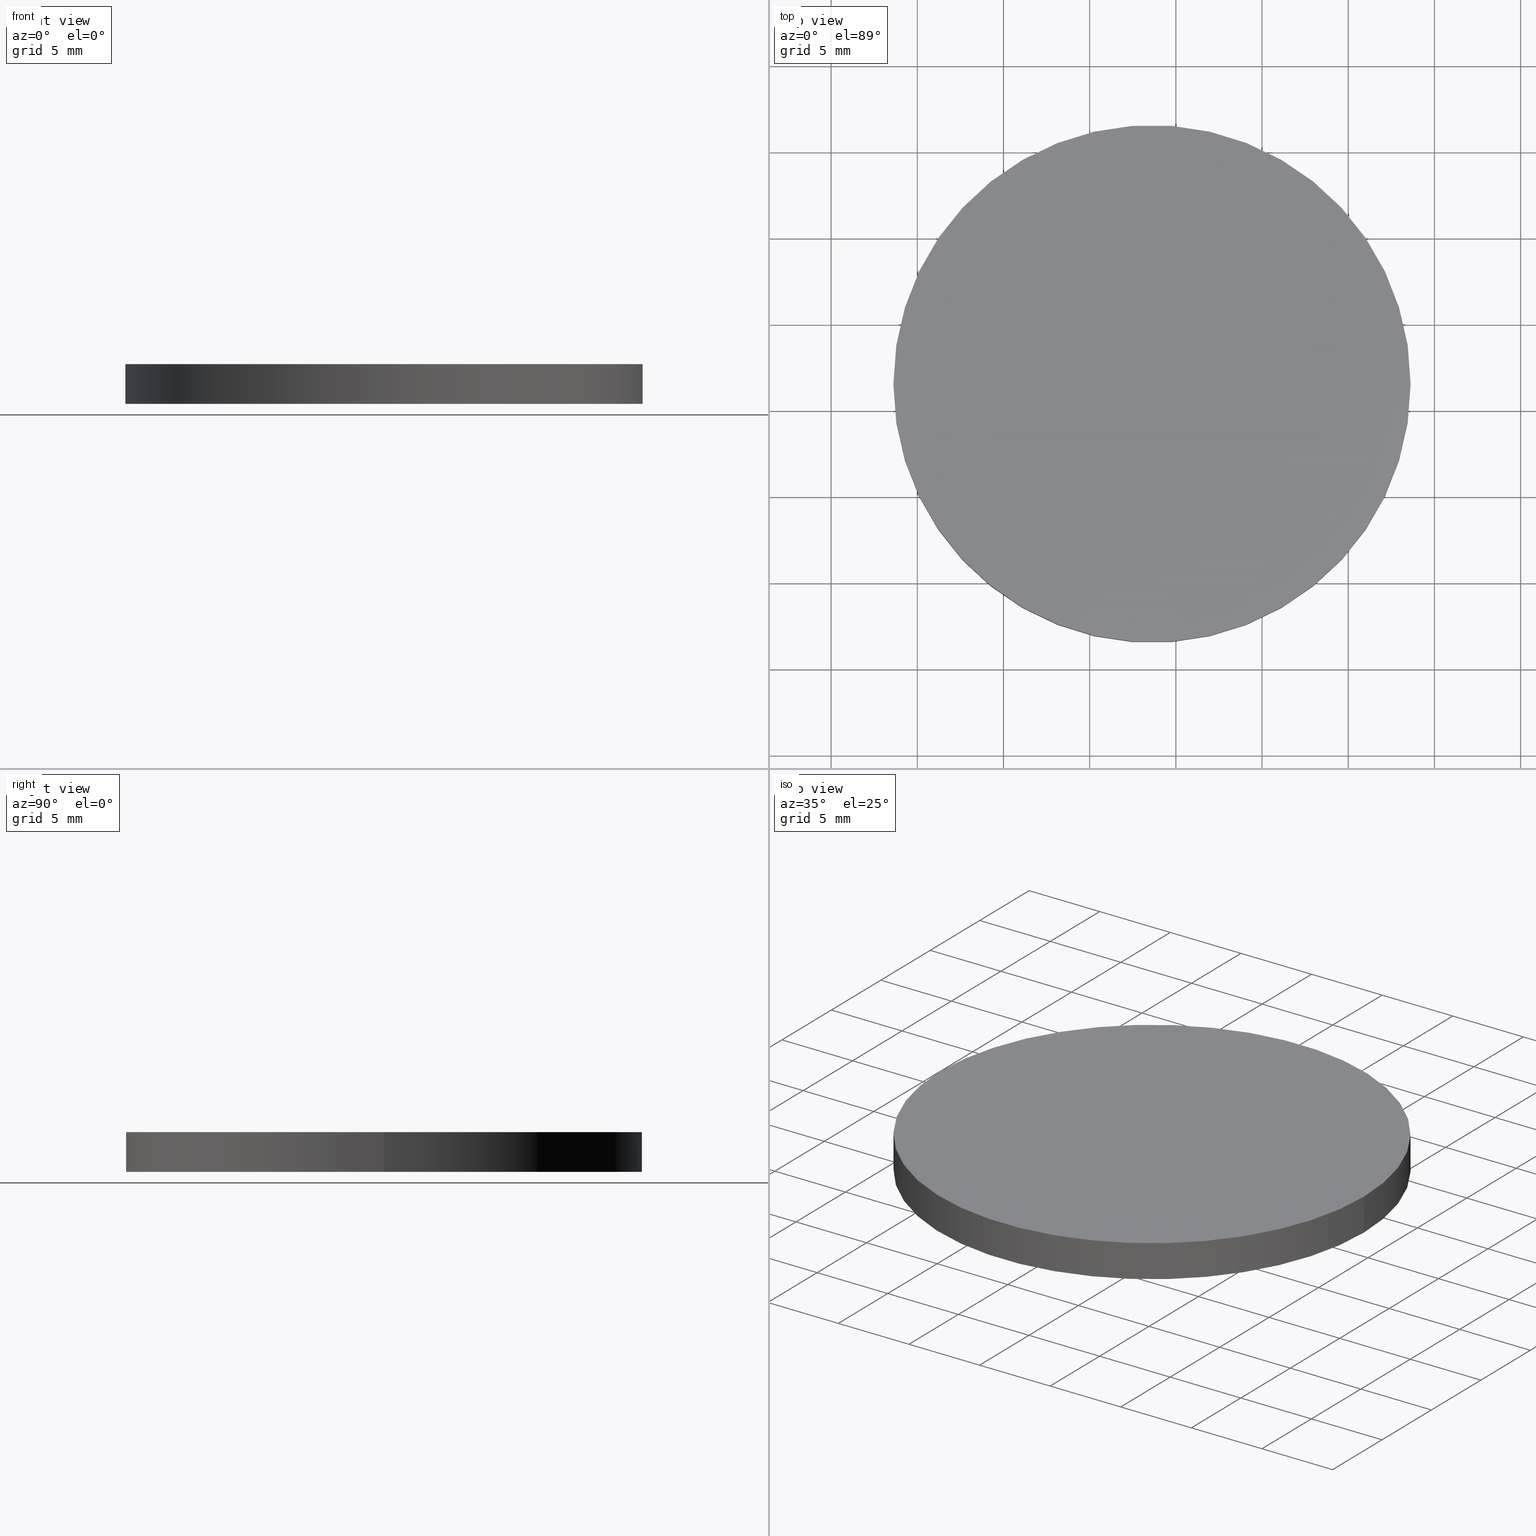
[diagram: canonical four-view strip — front | top / right | iso, engineering-drawing reading convention]
A machine part, canonical four-view strip (front | top / right | iso — engineering-drawing reading convention). The complete STEP part file that produces these views, byte-faithful:
ISO-10303-21;
HEADER;
FILE_DESCRIPTION (( 'STEP AP214' ),
    '1' );
FILE_NAME ('302520.STEP',
    '2019-08-13T06:31:06',
    ( '' ),
    ( '' ),
    'SwSTEP 2.0',
    'SolidWorks 2016',
    '' );
FILE_SCHEMA (( 'AUTOMOTIVE_DESIGN' ));
ENDSEC;

DATA;
#1 = PRESENTATION_LAYER_ASSIGNMENT (  '', '', ( #62 ) ) ;
#2 =( GEOMETRIC_REPRESENTATION_CONTEXT ( 3 ) GLOBAL_UNCERTAINTY_ASSIGNED_CONTEXT ( ( #34 ) ) GLOBAL_UNIT_ASSIGNED_CONTEXT ( ( #65, #28, #72 ) ) REPRESENTATION_CONTEXT ( 'NONE', 'WORKASPACE' ) );
#3 = ADVANCED_BREP_SHAPE_REPRESENTATION ( '302520', ( #96, #55 ), #2 ) ;
#4 = LINE ( 'NONE', #35, #129 ) ;
#5 =( NAMED_UNIT ( * ) PLANE_ANGLE_UNIT ( ) SI_UNIT ( $, .RADIAN. ) );
#6 = EDGE_LOOP ( 'NONE', ( #78, #122, #24, #83 ) ) ;
#7 =( NAMED_UNIT ( * ) SI_UNIT ( $, .STERADIAN. ) SOLID_ANGLE_UNIT ( ) );
#8 = PRESENTATION_STYLE_ASSIGNMENT (( #92 ) ) ;
#9 = PRODUCT_DEFINITION_FORMATION_WITH_SPECIFIED_SOURCE ( '�κ�', '', #15, .NOT_KNOWN. ) ;
#10 = CARTESIAN_POINT ( 'NONE',  ( 108.6149839422837000, 61.56324183452659300, 2.299999999999999800 ) ) ;
#11 = DIRECTION ( 'NONE',  ( -0.0000000000000000000, -0.0000000000000000000, -1.000000000000000000 ) ) ;
#12 =( GEOMETRIC_REPRESENTATION_CONTEXT ( 3 ) GLOBAL_UNCERTAINTY_ASSIGNED_CONTEXT ( ( #70 ) ) GLOBAL_UNIT_ASSIGNED_CONTEXT ( ( #64, #5, #7 ) ) REPRESENTATION_CONTEXT ( 'NONE', 'WORKASPACE' ) );
#13 = DIRECTION ( 'NONE',  ( 0.0000000000000000000, 0.0000000000000000000, 1.000000000000000000 ) ) ;
#14 = ORIENTED_EDGE ( 'NONE', *, *, #93, .F. ) ;
#15 = PRODUCT ( '302520', '302520', '', ( #33 ) ) ;
#16 = PRODUCT_RELATED_PRODUCT_CATEGORY ( 'part', '', ( #15 ) ) ;
#17 = SURFACE_STYLE_FILL_AREA ( #124 ) ;
#18 = EDGE_CURVE ( 'NONE', #87, #21, #4, .T. ) ;
#19 = CIRCLE ( 'NONE', #90, 15.00000000000000000 ) ;
#20 = CARTESIAN_POINT ( 'NONE',  ( 93.61498394228370000, 61.56324183452659300, 2.299999999999999800 ) ) ;
#21 = VERTEX_POINT ( 'NONE', #133 ) ;
#22 = CARTESIAN_POINT ( 'NONE',  ( 108.6149839422837000, 61.56324183452659300, 2.299999999999999800 ) ) ;
#23 = EDGE_CURVE ( 'NONE', #85, #87, #106, .T. ) ;
#24 = ORIENTED_EDGE ( 'NONE', *, *, #93, .T. ) ;
#25 = ORIENTED_EDGE ( 'NONE', *, *, #23, .T. ) ;
#26 = DIRECTION ( 'NONE',  ( 0.0000000000000000000, 0.0000000000000000000, 1.000000000000000000 ) ) ;
#27 = EDGE_LOOP ( 'NONE', ( #74, #66 ) ) ;
#28 =( NAMED_UNIT ( * ) PLANE_ANGLE_UNIT ( ) SI_UNIT ( $, .RADIAN. ) );
#29 =( NAMED_UNIT ( * ) SI_UNIT ( $, .STERADIAN. ) SOLID_ANGLE_UNIT ( ) );
#30 = CARTESIAN_POINT ( 'NONE',  ( 108.6149839422837000, 61.56324183452659300, 0.0000000000000000000 ) ) ;
#31 = VECTOR ( 'NONE', #63, 1000.000000000000000 ) ;
#32 = CARTESIAN_POINT ( 'NONE',  ( 93.61498394228370000, 61.56324183452659300, 2.299999999999999800 ) ) ;
#33 = PRODUCT_CONTEXT ( 'NONE', #113, 'mechanical' ) ;
#34 = UNCERTAINTY_MEASURE_WITH_UNIT (LENGTH_MEASURE( 1.000000000000000100E-005 ), #65, 'distance_accuracy_value', 'NONE');
#35 = CARTESIAN_POINT ( 'NONE',  ( 123.6149839422836900, 61.56324183452659300, 2.299999999999999800 ) ) ;
#36 = COLOUR_RGB ( '',1.000000000000000000, 1.000000000000000000, 1.000000000000000000 ) ;
#37 = DIRECTION ( 'NONE',  ( 1.000000000000000000, 0.0000000000000000000, -0.0000000000000000000 ) ) ;
#38 = CIRCLE ( 'NONE', #75, 15.00000000000000000 ) ;
#39 = CARTESIAN_POINT ( 'NONE',  ( 123.6149839422836900, 61.56324183452659300, 2.299999999999999800 ) ) ;
#40 = DIRECTION ( 'NONE',  ( 1.000000000000000000, 0.0000000000000000000, -0.0000000000000000000 ) ) ;
#41 = SURFACE_SIDE_STYLE ('',( #17 ) ) ;
#42 =( NAMED_UNIT ( * ) PLANE_ANGLE_UNIT ( ) SI_UNIT ( $, .RADIAN. ) );
#43 = CYLINDRICAL_SURFACE ( 'NONE', #107, 15.00000000000000000 ) ;
#44 = PRODUCT_DEFINITION_SHAPE ( 'NONE', 'NONE',  #121 ) ;
#45 = PRESENTATION_STYLE_ASSIGNMENT (( #114 ) ) ;
#46 = CIRCLE ( 'NONE', #56, 15.00000000000000000 ) ;
#47 = APPLICATION_PROTOCOL_DEFINITION ( 'draft international standard', 'automotive_design', 1998, #88 ) ;
#48 = AXIS2_PLACEMENT_3D ( 'NONE', #102, #134, #69 ) ;
#49 = ADVANCED_FACE ( 'NONE', ( #116 ), #50, .T. ) ;
#50 = PLANE ( 'NONE',  #73 ) ;
#51 = DIRECTION ( 'NONE',  ( 0.0000000000000000000, 0.0000000000000000000, 1.000000000000000000 ) ) ;
#52 = ORIENTED_EDGE ( 'NONE', *, *, #97, .F. ) ;
#53 = APPLICATION_PROTOCOL_DEFINITION ( 'draft international standard', 'automotive_design', 1998, #113 ) ;
#54 = CARTESIAN_POINT ( 'NONE',  ( 93.61498394228370000, 61.56324183452659300, 0.0000000000000000000 ) ) ;
#55 = AXIS2_PLACEMENT_3D ( 'NONE', #82, #131, #111 ) ;
#56 = AXIS2_PLACEMENT_3D ( 'NONE', #99, #26, #123 ) ;
#57 = FACE_OUTER_BOUND ( 'NONE', #6, .T. ) ;
#58 = EDGE_CURVE ( 'NONE', #101, #21, #46, .T. ) ;
#59 = DIRECTION ( 'NONE',  ( 0.0000000000000000000, 0.0000000000000000000, 1.000000000000000000 ) ) ;
#60 = ORIENTED_EDGE ( 'NONE', *, *, #97, .T. ) ;
#61 = DIRECTION ( 'NONE',  ( -0.0000000000000000000, -0.0000000000000000000, -1.000000000000000000 ) ) ;
#62 = STYLED_ITEM ( 'NONE', ( #45 ), #3 ) ;
#63 = DIRECTION ( 'NONE',  ( -0.0000000000000000000, -0.0000000000000000000, -1.000000000000000000 ) ) ;
#64 =( LENGTH_UNIT ( ) NAMED_UNIT ( * ) SI_UNIT ( .MILLI., .METRE. ) );
#65 =( LENGTH_UNIT ( ) NAMED_UNIT ( * ) SI_UNIT ( .MILLI., .METRE. ) );
#66 = ORIENTED_EDGE ( 'NONE', *, *, #77, .F. ) ;
#67 = ADVANCED_FACE ( 'NONE', ( #130 ), #89, .F. ) ;
#68 = CARTESIAN_POINT ( 'NONE',  ( 108.6149839422837000, 61.56324183452659300, 0.0000000000000000000 ) ) ;
#69 = DIRECTION ( 'NONE',  ( 1.000000000000000000, 0.0000000000000000000, 0.0000000000000000000 ) ) ;
#70 = UNCERTAINTY_MEASURE_WITH_UNIT (LENGTH_MEASURE( 1.000000000000000100E-005 ), #64, 'distance_accuracy_value', 'NONE');
#71 = CYLINDRICAL_SURFACE ( 'NONE', #110, 15.00000000000000000 ) ;
#72 =( NAMED_UNIT ( * ) SI_UNIT ( $, .STERADIAN. ) SOLID_ANGLE_UNIT ( ) );
#73 = AXIS2_PLACEMENT_3D ( 'NONE', #22, #59, #37 ) ;
#74 = ORIENTED_EDGE ( 'NONE', *, *, #58, .F. ) ;
#75 = AXIS2_PLACEMENT_3D ( 'NONE', #30, #13, #139 ) ;
#76 = ADVANCED_FACE ( 'NONE', ( #57 ), #43, .T. ) ;
#77 = EDGE_CURVE ( 'NONE', #21, #101, #38, .T. ) ;
#78 = ORIENTED_EDGE ( 'NONE', *, *, #18, .F. ) ;
#79 = DIRECTION ( 'NONE',  ( -1.000000000000000000, 0.0000000000000000000, 0.0000000000000000000 ) ) ;
#80 = DIRECTION ( 'NONE',  ( 1.000000000000000000, 0.0000000000000000000, 0.0000000000000000000 ) ) ;
#81 = SURFACE_SIDE_STYLE ('',( #108 ) ) ;
#82 = CARTESIAN_POINT ( 'NONE',  ( 0.0000000000000000000, 0.0000000000000000000, 0.0000000000000000000 ) ) ;
#83 = ORIENTED_EDGE ( 'NONE', *, *, #58, .T. ) ;
#84 = PRESENTATION_LAYER_ASSIGNMENT (  '', '', ( #120 ) ) ;
#85 = VERTEX_POINT ( 'NONE', #20 ) ;
#86 = AXIS2_PLACEMENT_3D ( 'NONE', #68, #51, #40 ) ;
#87 = VERTEX_POINT ( 'NONE', #39 ) ;
#88 = APPLICATION_CONTEXT ( 'automotive_design' ) ;
#89 = PLANE ( 'NONE',  #86 ) ;
#90 = AXIS2_PLACEMENT_3D ( 'NONE', #128, #94, #80 ) ;
#91 = FILL_AREA_STYLE_COLOUR ( '', #36 ) ;
#92 = SURFACE_STYLE_USAGE ( .BOTH. , #41 ) ;
#93 = EDGE_CURVE ( 'NONE', #85, #101, #140, .T. ) ;
#94 = DIRECTION ( 'NONE',  ( 0.0000000000000000000, 0.0000000000000000000, 1.000000000000000000 ) ) ;
#95 = CLOSED_SHELL ( 'NONE', ( #119, #76, #49, #67 ) ) ;
#96 = MANIFOLD_SOLID_BREP ( '͹̨-����1', #95 ) ;
#97 = EDGE_CURVE ( 'NONE', #87, #85, #19, .T. ) ;
#98 = PRODUCT_DEFINITION_CONTEXT ( 'detailed design', #88, 'design' ) ;
#99 = CARTESIAN_POINT ( 'NONE',  ( 108.6149839422837000, 61.56324183452659300, 0.0000000000000000000 ) ) ;
#100 = MECHANICAL_DESIGN_GEOMETRIC_PRESENTATION_REPRESENTATION (  '', ( #120 ), #117 ) ;
#101 = VERTEX_POINT ( 'NONE', #54 ) ;
#102 = CARTESIAN_POINT ( 'NONE',  ( 108.6149839422837000, 61.56324183452659300, 2.299999999999999800 ) ) ;
#103 = DIRECTION ( 'NONE',  ( -0.0000000000000000000, -0.0000000000000000000, -1.000000000000000000 ) ) ;
#104 = FILL_AREA_STYLE ('',( #91 ) ) ;
#105 = CARTESIAN_POINT ( 'NONE',  ( 108.6149839422837000, 61.56324183452659300, 2.299999999999999800 ) ) ;
#106 = CIRCLE ( 'NONE', #48, 15.00000000000000000 ) ;
#107 = AXIS2_PLACEMENT_3D ( 'NONE', #10, #11, #79 ) ;
#108 = SURFACE_STYLE_FILL_AREA ( #104 ) ;
#109 = ORIENTED_EDGE ( 'NONE', *, *, #18, .T. ) ;
#110 = AXIS2_PLACEMENT_3D ( 'NONE', #105, #103, #138 ) ;
#111 = DIRECTION ( 'NONE',  ( 1.000000000000000000, 0.0000000000000000000, 0.0000000000000000000 ) ) ;
#112 = EDGE_LOOP ( 'NONE', ( #25, #60 ) ) ;
#113 = APPLICATION_CONTEXT ( 'automotive_design' ) ;
#114 = SURFACE_STYLE_USAGE ( .BOTH. , #81 ) ;
#115 = ORIENTED_EDGE ( 'NONE', *, *, #77, .T. ) ;
#116 = FACE_OUTER_BOUND ( 'NONE', #112, .T. ) ;
#117 =( GEOMETRIC_REPRESENTATION_CONTEXT ( 3 ) GLOBAL_UNCERTAINTY_ASSIGNED_CONTEXT ( ( #137 ) ) GLOBAL_UNIT_ASSIGNED_CONTEXT ( ( #136, #42, #29 ) ) REPRESENTATION_CONTEXT ( 'NONE', 'WORKASPACE' ) );
#118 = EDGE_LOOP ( 'NONE', ( #52, #109, #115, #14 ) ) ;
#119 = ADVANCED_FACE ( 'NONE', ( #126 ), #71, .T. ) ;
#120 = STYLED_ITEM ( 'NONE', ( #8 ), #96 ) ;
#121 = PRODUCT_DEFINITION ( 'δ֪', '', #9, #98 ) ;
#122 = ORIENTED_EDGE ( 'NONE', *, *, #23, .F. ) ;
#123 = DIRECTION ( 'NONE',  ( 1.000000000000000000, 0.0000000000000000000, 0.0000000000000000000 ) ) ;
#124 = FILL_AREA_STYLE ('',( #127 ) ) ;
#125 = MECHANICAL_DESIGN_GEOMETRIC_PRESENTATION_REPRESENTATION (  '', ( #62 ), #12 ) ;
#126 = FACE_OUTER_BOUND ( 'NONE', #118, .T. ) ;
#127 = FILL_AREA_STYLE_COLOUR ( '', #135 ) ;
#128 = CARTESIAN_POINT ( 'NONE',  ( 108.6149839422837000, 61.56324183452659300, 2.299999999999999800 ) ) ;
#129 = VECTOR ( 'NONE', #61, 1000.000000000000000 ) ;
#130 = FACE_OUTER_BOUND ( 'NONE', #27, .T. ) ;
#131 = DIRECTION ( 'NONE',  ( 0.0000000000000000000, 0.0000000000000000000, 1.000000000000000000 ) ) ;
#132 = SHAPE_DEFINITION_REPRESENTATION ( #44, #3 ) ;
#133 = CARTESIAN_POINT ( 'NONE',  ( 123.6149839422836900, 61.56324183452659300, 0.0000000000000000000 ) ) ;
#134 = DIRECTION ( 'NONE',  ( 0.0000000000000000000, 0.0000000000000000000, 1.000000000000000000 ) ) ;
#135 = COLOUR_RGB ( '',1.000000000000000000, 1.000000000000000000, 1.000000000000000000 ) ;
#136 =( LENGTH_UNIT ( ) NAMED_UNIT ( * ) SI_UNIT ( .MILLI., .METRE. ) );
#137 = UNCERTAINTY_MEASURE_WITH_UNIT (LENGTH_MEASURE( 1.000000000000000100E-005 ), #136, 'distance_accuracy_value', 'NONE');
#138 = DIRECTION ( 'NONE',  ( -1.000000000000000000, 0.0000000000000000000, 0.0000000000000000000 ) ) ;
#139 = DIRECTION ( 'NONE',  ( 1.000000000000000000, 0.0000000000000000000, 0.0000000000000000000 ) ) ;
#140 = LINE ( 'NONE', #32, #31 ) ;
ENDSEC;
END-ISO-10303-21;
